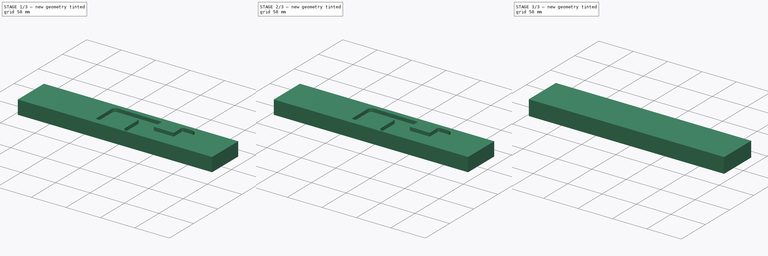
[diagram: build sequence overview — one tinted view per stage of 3, left to right]
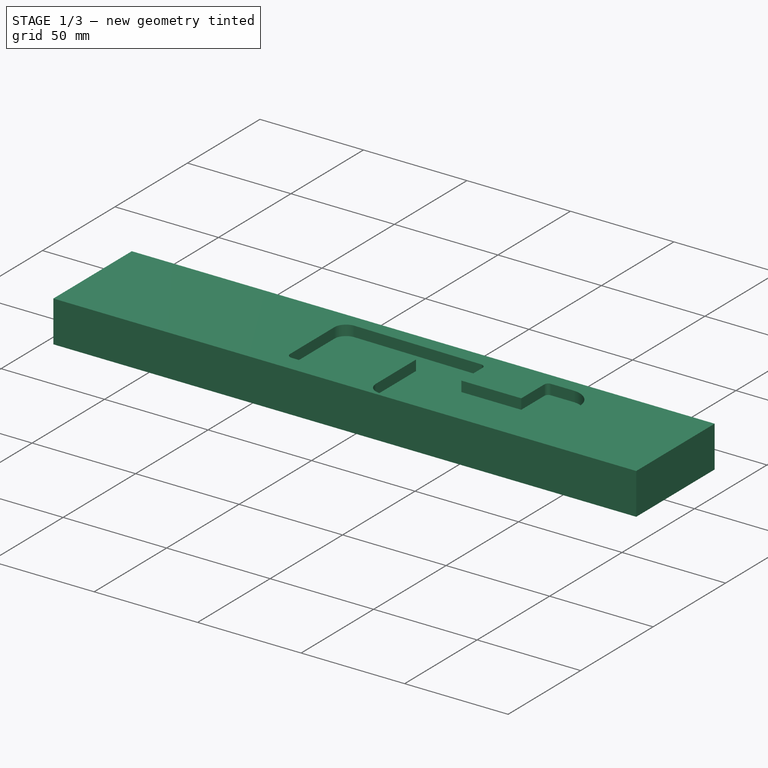
[diagram: stage 1 of 3 — iso view after this stage's code; geometry added in this stage tinted green]
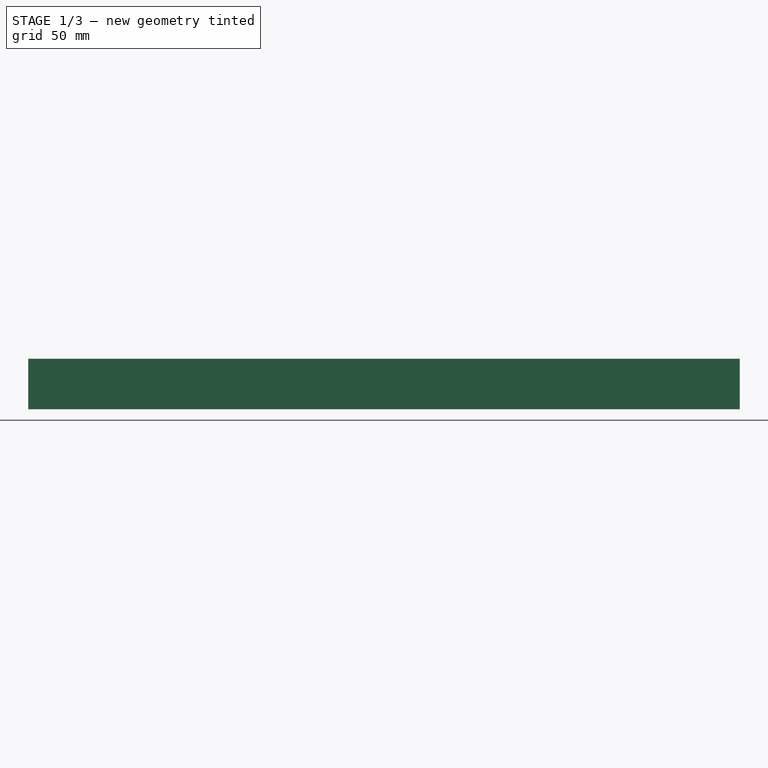
[diagram: stage 1 of 3 — front view after this stage's code; geometry added in this stage tinted green]
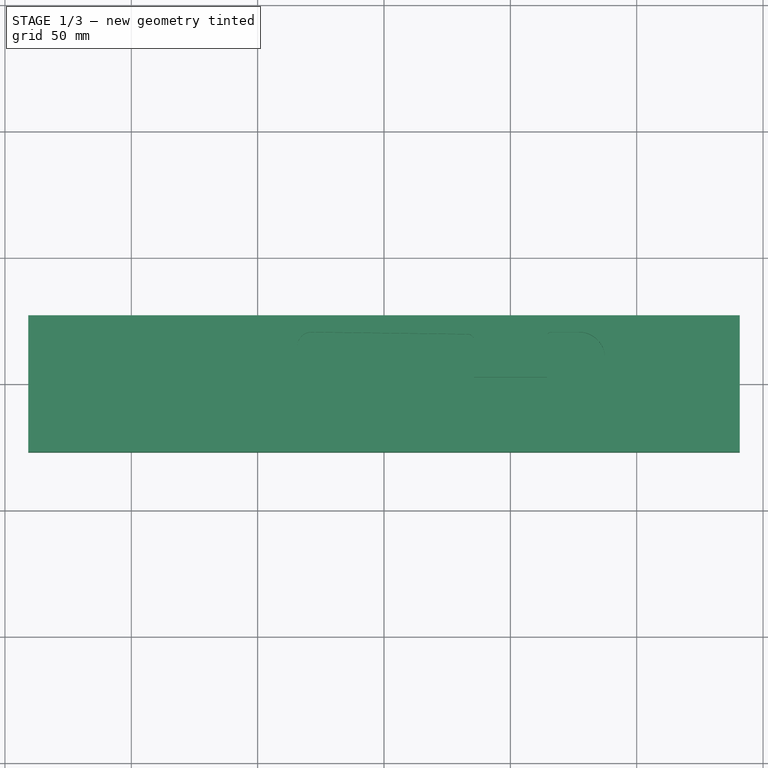
[diagram: stage 1 of 3 — top view after this stage's code; geometry added in this stage tinted green]
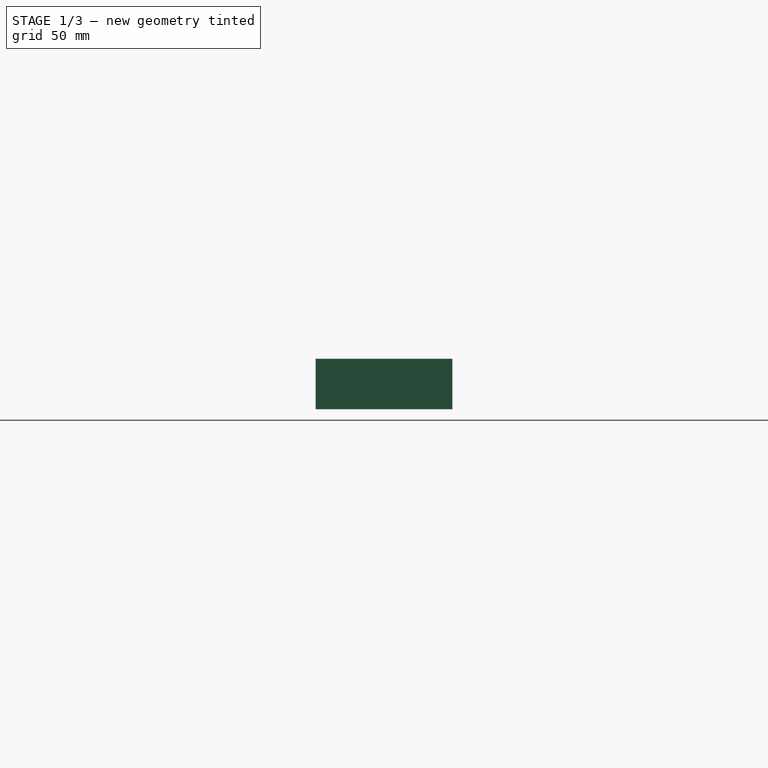
[diagram: stage 1 of 3 — right view after this stage's code; geometry added in this stage tinted green]
FCSTD DOCUMENT  (FreeCAD 1.1R20260108 (Git shallow))
Label: test5
License: All rights reserved
LicenseURL: https://en.wikipedia.org/wiki/All_rights_reserved
objects: App::DocumentObjectGroupPython×4, Part::FeaturePython×3, Sketcher::SketchObject×2, App::Point×2, PartDesign::Pad×1, PartDesign::Pocket×1, PartDesign::Body×1, App::Part×1, App::FeaturePython×1
note: 16 computed .brp shape members not serialized (recipe doc carries the construction recipe); baked Part::Feature solids carry a one-line shape summary decoded from their .brp

FEATURE [Sketcher::SketchObject] Sketch
  ArcFitTolerance = 1e-06
  AttachmentSupport = -> [XY_Plane001]
  ExternalTypes = [0]
  FullyConstrained = false
  MakeInternals = false
  MapMode = 5
  sketch-geometry (5):
    g0: LineSegment StartX=140.782 StartY=-27.0383 StartZ=0 EndX=140.782 EndY=27.0383 EndZ=0
    g1: LineSegment StartX=140.782 StartY=27.0383 StartZ=0 EndX=-140.782 EndY=27.0383 EndZ=0
    g2: LineSegment StartX=-140.782 StartY=27.0383 StartZ=0 EndX=-140.782 EndY=-27.0383 EndZ=0
    g3: LineSegment StartX=-140.782 StartY=-27.0383 StartZ=0 EndX=140.782 EndY=-27.0383 EndZ=0
    g4: GeomPoint [constr] X=0 Y=0 Z=0
  constraints (10):
    c: Coincident(g0,g1)
    c: Coincident(g1,g2)
    c: Coincident(g2,g3)
    c: Coincident(g3,g0)
    c: Vertical(g0)
    c: Vertical(g2)
    c: Horizontal(g1)
    c: Horizontal(g3)
    c: Symmetric(g2,g0,g4)
    c: Coincident(g4,g-1)
FEATURE [PartDesign::Pad] Pad
  Direction = (0,0,1)
  Length = 20
  Length2 = 10
  Profile = -> Sketch
  ReferenceAxis = -> Sketch [N_Axis]
  Refine = true
  Reversed = true
  SideType = 0
  Suppressed = false
  Type = 0
  Type2 = 0
FEATURE [Sketcher::SketchObject] Sketch001
  ArcFitTolerance = 1e-06
  AttachmentSupport = -> [Pad]
  ExternalTypes = [0]
  FullyConstrained = false
  MakeInternals = false
  MapMode = 5
  sketch-geometry (28):
    g0: LineSegment StartX=-34.2923 StartY=14.7611 StartZ=0 EndX=-34.2923 EndY=-15.7582 EndZ=0
    g1: LineSegment StartX=-31.5929 StartY=-18.4577 StartZ=0 EndX=-17.2031 EndY=-18.4577 EndZ=0
    g2: LineSegment StartX=-14.7051 StartY=-16.7306 StartZ=0 EndX=-6.84512 EndY=4.0904 EndZ=0
    g3: LineSegment StartX=-6.84512 StartY=4.0904 StartZ=0 EndX=4.34051 EndY=4.0904 EndZ=0
    g4: LineSegment StartX=4.34051 StartY=4.0904 StartZ=0 EndX=9.55143 EndY=8.43084 EndZ=0
    g5: LineSegment StartX=9.55143 StartY=8.43084 StartZ=0 EndX=9.55143 EndY=-19.1128 EndZ=0
    g6: LineSegment StartX=15.9918 StartY=-25.5531 StartZ=0 EndX=81.2689 EndY=-25.5531 EndZ=0
    g7: LineSegment StartX=87.4972 StartY=-19.3249 StartZ=0 EndX=87.4972 EndY=9.98194 EndZ=0
    g8: LineSegment StartX=77.058 StartY=20.4211 StartZ=0 EndX=66.2624 EndY=20.4211 EndZ=0
    g9: ArcOfCircle CenterX=-28.6592 CenterY=14.7611 CenterZ=0 NormalX=0 NormalY=0 NormalZ=1 AngleXU=0 Radius=5.63312 StartAngle=1.56888 EndAngle=3.14159
    g10: GeomPoint [constr] X=-34.2923 Y=20.4692 Z=0
    g11: ArcOfCircle CenterX=77.058 CenterY=9.98194 CenterZ=0 NormalX=0 NormalY=0 NormalZ=1 AngleXU=0 Radius=10.4391 StartAngle=0 EndAngle=1.5708
    g12: GeomPoint [constr] X=87.4972 Y=20.4211 Z=0
    g13: ArcOfCircle CenterX=15.9918 CenterY=-19.1128 CenterZ=0 NormalX=0 NormalY=0 NormalZ=1 AngleXU=0 Radius=6.44034 StartAngle=3.14159 EndAngle=4.71239
    g14: GeomPoint [constr] X=9.55143 Y=-25.5531 Z=0
    g15: ArcOfCircle CenterX=-31.5929 CenterY=-15.7582 CenterZ=0 NormalX=0 NormalY=0 NormalZ=1 AngleXU=0 Radius=2.69944 StartAngle=3.14159 EndAngle=4.71239
    g16: GeomPoint [constr] X=-34.2923 Y=-18.4577 Z=0
    g17: ArcOfCircle CenterX=-17.2031 CenterY=-15.7876 CenterZ=0 NormalX=0 NormalY=0 NormalZ=1 AngleXU=0 Radius=2.67006 StartAngle=4.71239 EndAngle=5.92222
    g18: GeomPoint [constr] X=-15.3571 Y=-18.4577 Z=0
    g19: ArcOfCircle CenterX=81.2689 CenterY=-19.3249 CenterZ=0 NormalX=0 NormalY=0 NormalZ=1 AngleXU=0 Radius=6.22826 StartAngle=4.71239 EndAngle=6.28319
    g20: GeomPoint [constr] X=87.4972 Y=-25.5531 Z=0
    g21: LineSegment StartX=35.5717 StartY=17.1404 StartZ=0 EndX=35.5717 EndY=2.60802 EndZ=0
    g22: LineSegment StartX=35.5717 StartY=2.60802 StartZ=0 EndX=64.4842 EndY=2.60802 EndZ=0
    g23: LineSegment StartX=64.4842 StartY=2.60802 StartZ=0 EndX=64.4842 EndY=18.6429 EndZ=0
    g24: LineSegment StartX=33.171 StartY=19.5731 StartZ=0 EndX=-28.6484 EndY=20.3942 EndZ=0
    g25: ArcOfCircle CenterX=66.2624 CenterY=18.6429 CenterZ=0 NormalX=0 NormalY=0 NormalZ=1 AngleXU=0 Radius=1.7782 StartAngle=1.5708 EndAngle=3.14159
    g26: GeomPoint [constr] X=64.4842 Y=20.4211 Z=0
    g27: ArcOfCircle CenterX=33.1387 CenterY=17.1404 CenterZ=0 NormalX=0 NormalY=0 NormalZ=1 AngleXU=0 Radius=2.43296 StartAngle=0 EndAngle=1.55751
  constraints (45):
    c: Vertical(g0)
    c: Horizontal(g1)
    c: Coincident(g3,g2)
    c: Horizontal(g3)
    c: Coincident(g4,g3)
    c: Coincident(g5,g4)
    c: Vertical(g5)
    c: Horizontal(g6)
    c: Vertical(g7)
    c: Horizontal(g8)
    c: PointOnObject(g10,g0)
    c: PointOnObject(g10,g24)
    c: Tangent(g0,g9) = -1.5708
    c: Coincident(g24,g9) = -1.5708
    c: PointOnObject(g12,g7)
    c: PointOnObject(g12,g8)
    c: Tangent(g7,g11) = -1.5708
    c: Tangent(g8,g11) = -1.5708
    c: PointOnObject(g14,g5)
    c: PointOnObject(g14,g6)
    c: Tangent(g5,g13) = -1.5708
    c: Tangent(g6,g13) = -1.5708
    c: PointOnObject(g16,g0)
    c: PointOnObject(g16,g1)
    c: Tangent(g0,g15) = -1.5708
    c: Tangent(g1,g15) = -1.5708
    c: PointOnObject(g18,g1)
    c: PointOnObject(g18,g2)
    c: Tangent(g1,g17) = -1.5708
    c: Tangent(g2,g17) = -1.5708
    c: PointOnObject(g20,g6)
    c: PointOnObject(g20,g7)
    c: Tangent(g6,g19) = -1.5708
    c: Tangent(g7,g19) = -1.5708
    c: Vertical(g21)
    c: Coincident(g22,g21)
    c: Horizontal(g22)
    c: Coincident(g23,g22)
    c: Vertical(g23)
    c: PointOnObject(g26,g8)
    c: PointOnObject(g26,g23)
    c: Tangent(g8,g25) = -1.5708
    c: Tangent(g23,g25) = 1.5708
    c: Tangent(g21,g27) = 1.5708
    c: Tangent(g24,g27) = -1.5708
FEATURE [PartDesign::Pocket] Pocket
  BaseFeature = -> Pad
  Direction = (0,0,-1)
  Length = 5
  Length2 = 5
  Profile = -> Sketch001
  ReferenceAxis = -> Sketch001 [N_Axis]
  Refine = true
  SideType = 0
  Suppressed = false
  Type = 0
  Type2 = 0
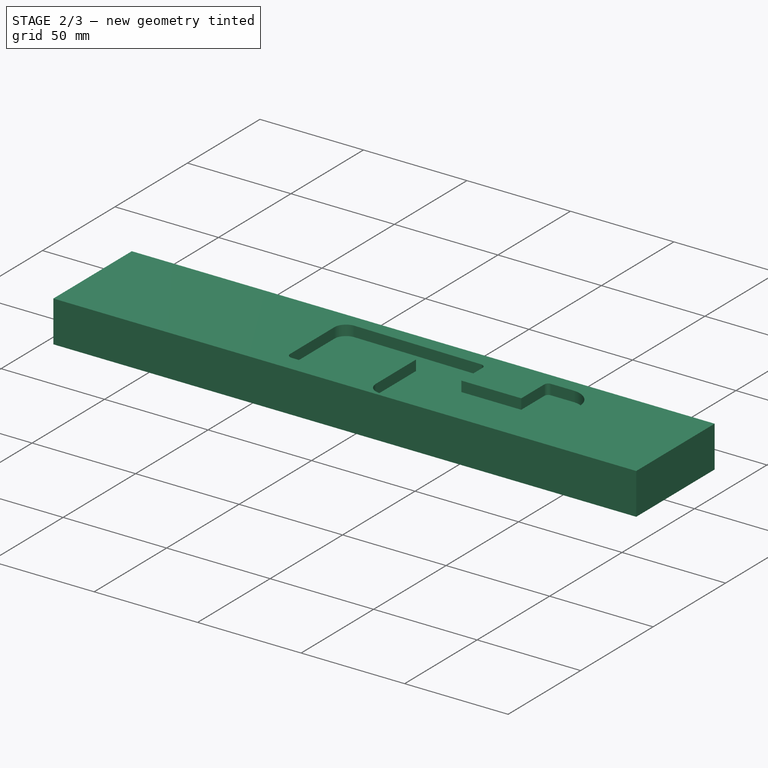
[diagram: stage 2 of 3 — iso view after this stage's code; geometry added in this stage tinted green]
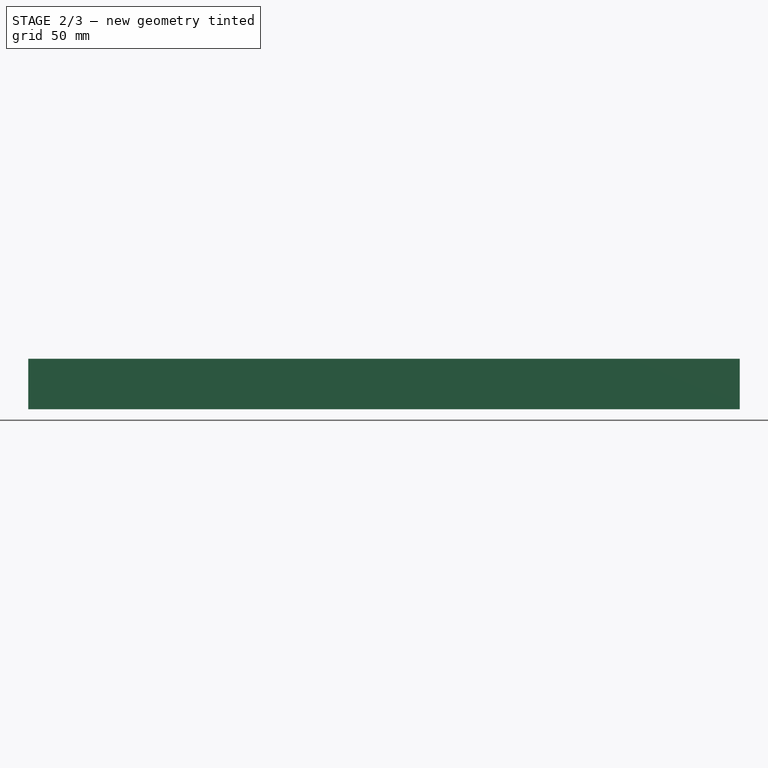
[diagram: stage 2 of 3 — front view after this stage's code; geometry added in this stage tinted green]
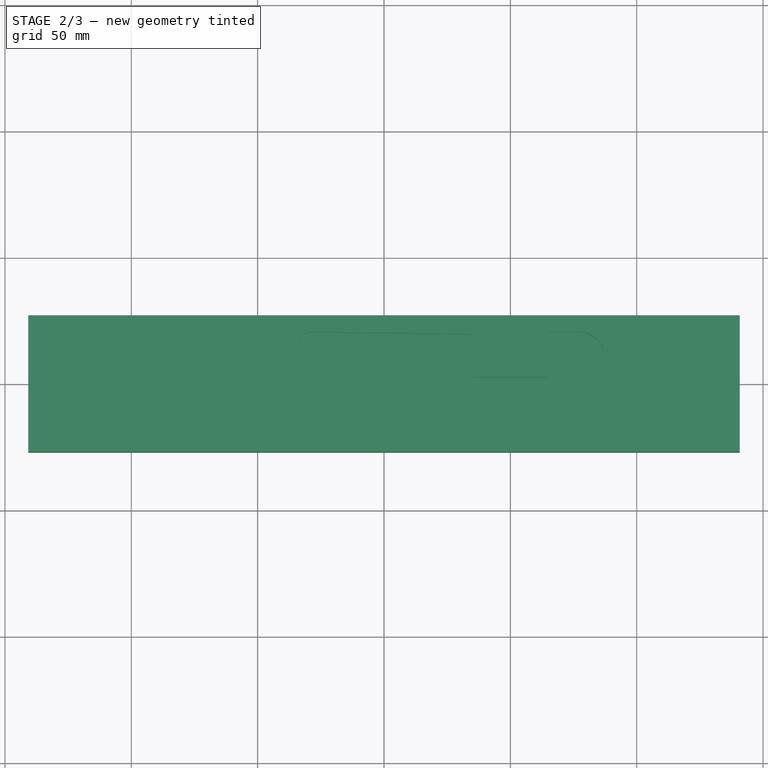
[diagram: stage 2 of 3 — top view after this stage's code; geometry added in this stage tinted green]
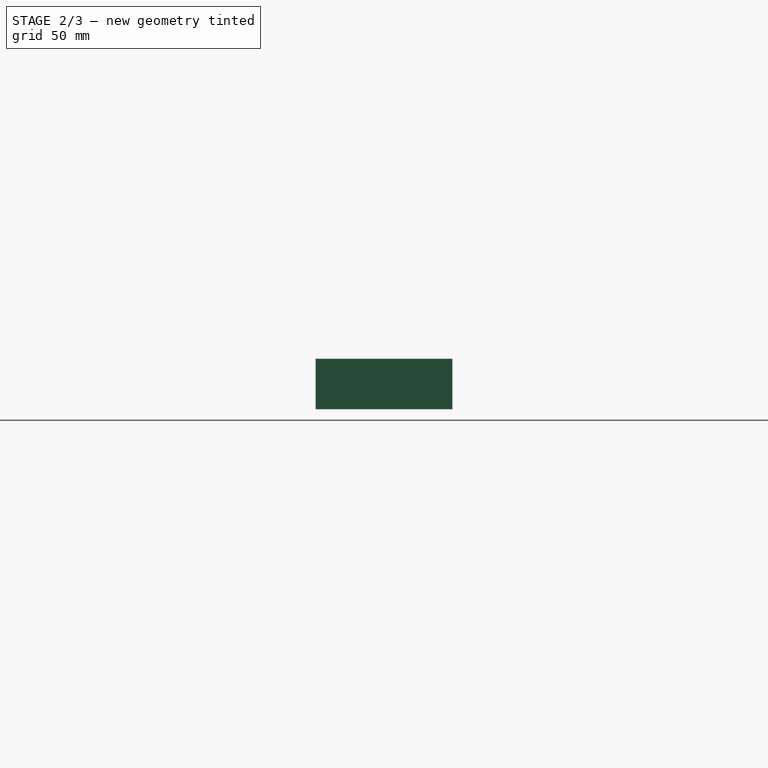
[diagram: stage 2 of 3 — right view after this stage's code; geometry added in this stage tinted green]
FEATURE [PartDesign::Body] Body
  AllowCompound = false
  Group = -> [Sketch,Pad,Sketch001,Pocket]
  Origin = -> Origin001
  Tip = -> Pocket
FEATURE [App::Part] Part
  Group = -> [Body]
  Origin = -> Origin
FEATURE [App::DocumentObjectGroupPython] Operations  # scripted group (container) (typed FeaturePython)
FEATURE [Part::FeaturePython] Clone  label="Clone_Body"  # Draft clone (typed FeaturePython)
  AttacherType = Attacher::AttachEngine3D
  ForceCompound = false
  Fuse = false
  Objects = -> [Body]
  Scale = (1,1,1)
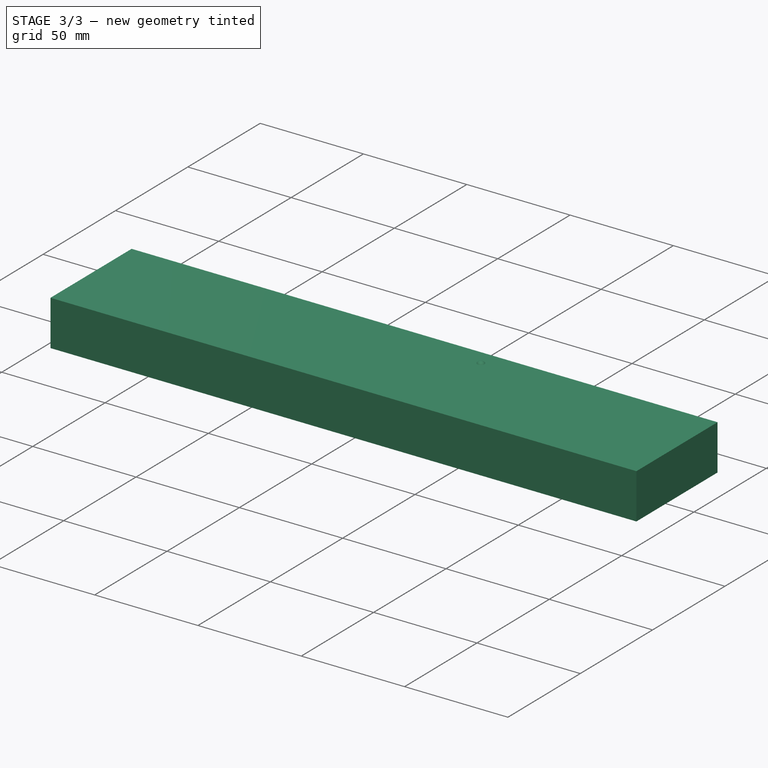
[diagram: stage 3 of 3 — iso view after this stage's code; geometry added in this stage tinted green]
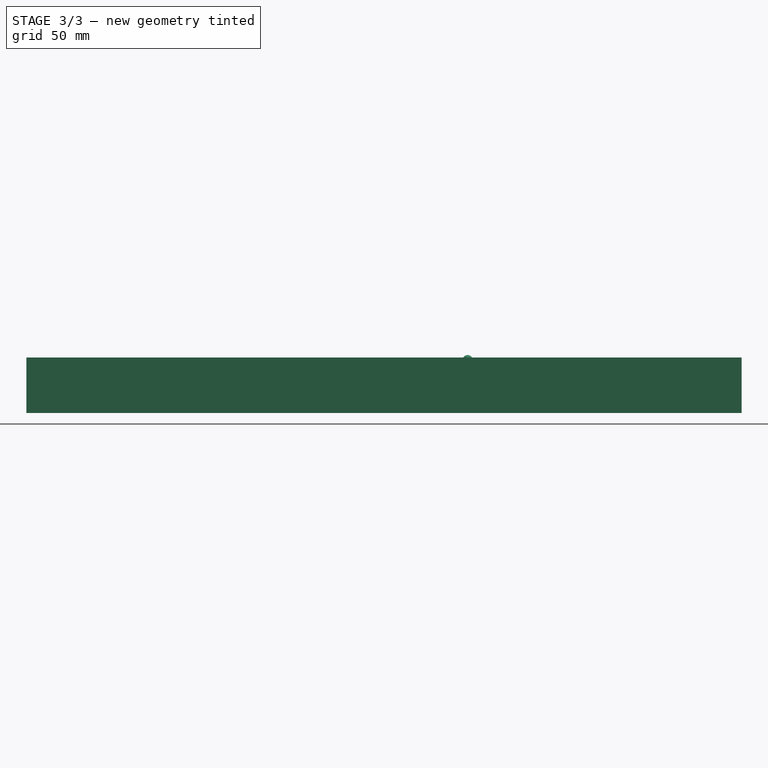
[diagram: stage 3 of 3 — front view after this stage's code; geometry added in this stage tinted green]
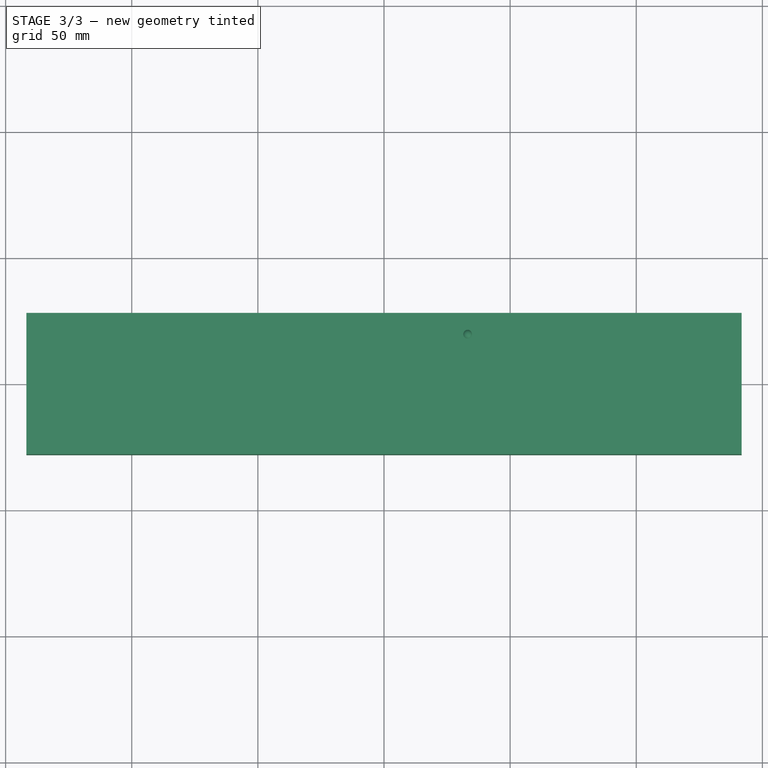
[diagram: stage 3 of 3 — top view after this stage's code; geometry added in this stage tinted green]
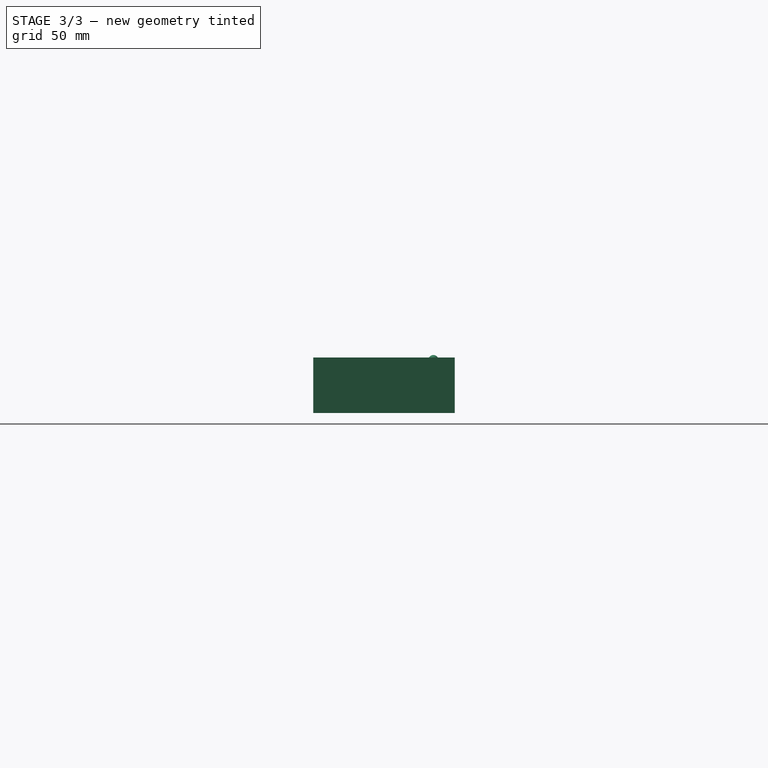
[diagram: stage 3 of 3 — right view after this stage's code; geometry added in this stage tinted green]
FEATURE [Part::FeaturePython] Stock  # WARN: FeaturePython — macro-defined, semantics opaque (R4)
  WorkPlane = 0
  XNeg = 1
  XPos = 1
  YNeg = 1
  YPos = 1
  ZNeg = 1
  ZPos = 1
FEATURE [App::FeaturePython] Origin002  label="Default Origin"  # WARN: FeaturePython — macro-defined, semantics opaque (R4)
  OriginName = Origine pièce
  OriginNumber = G54
FEATURE [App::DocumentObjectGroupPython] Tools  # scripted group (container) (typed FeaturePython)
FEATURE [Part::FeaturePython] ContourGeometry  # WARN: FeaturePython — macro-defined, semantics opaque (R4)
  DepthMode = 0
  Direction = 0
  Edges = -> [Clone]
  IsClosed = true
  Zref = 0
  debugArrow = true
  depth = -5
FEATURE [App::DocumentObjectGroupPython] Geometry  # scripted group (container) (typed FeaturePython)
  Group = -> [ContourGeometry]
FEATURE [App::DocumentObjectGroupPython] CamProject  # scripted group (container) (typed FeaturePython)
  Group = -> [Operations,Geometry,Clone,Stock,Origin002,Tools]
  Model = -> Clone
  PostProcessor = Siemens828
  WorkPlane = 0
  toolChangePos = (0,0,250)
FEATURE [App::Point] Origin003  label="Origin"
  Role = Origin
FEATURE [App::Point] Origin004  label="Origin"
  Role = Origin
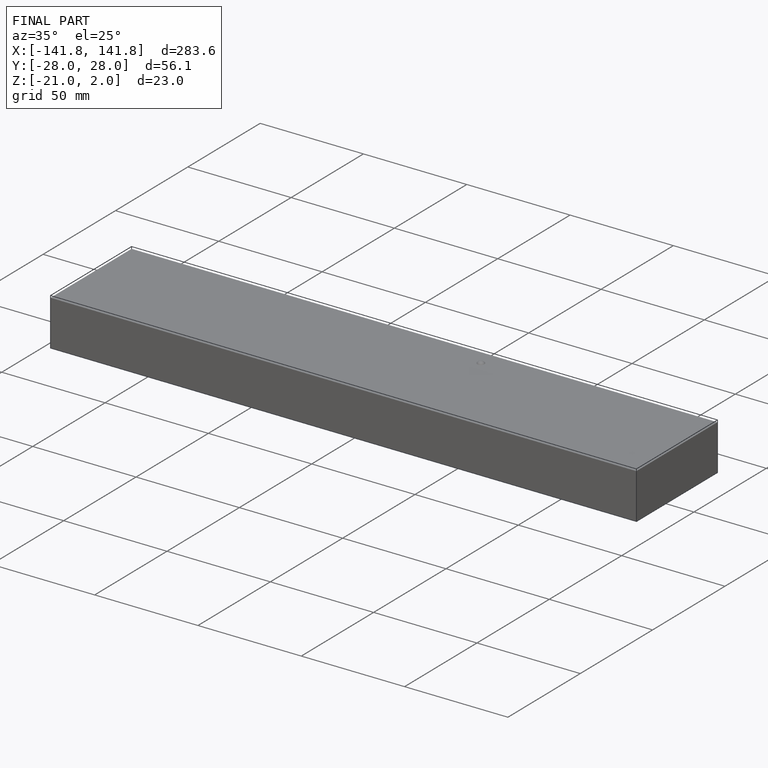
[diagram: finished part — iso view with bounding-box wireframe]
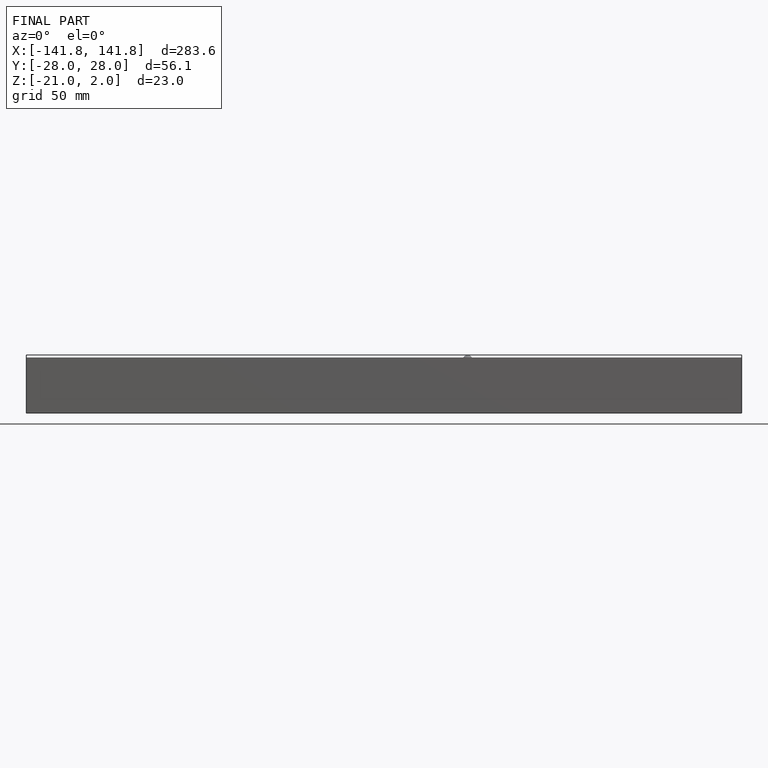
[diagram: finished part — front view with bounding-box wireframe]
